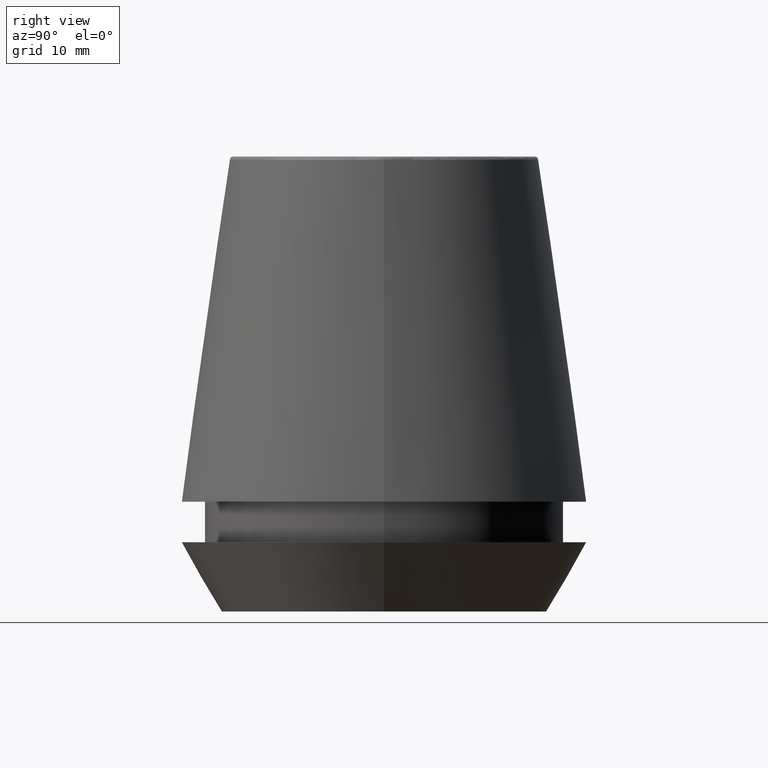
[diagram: clean part render]
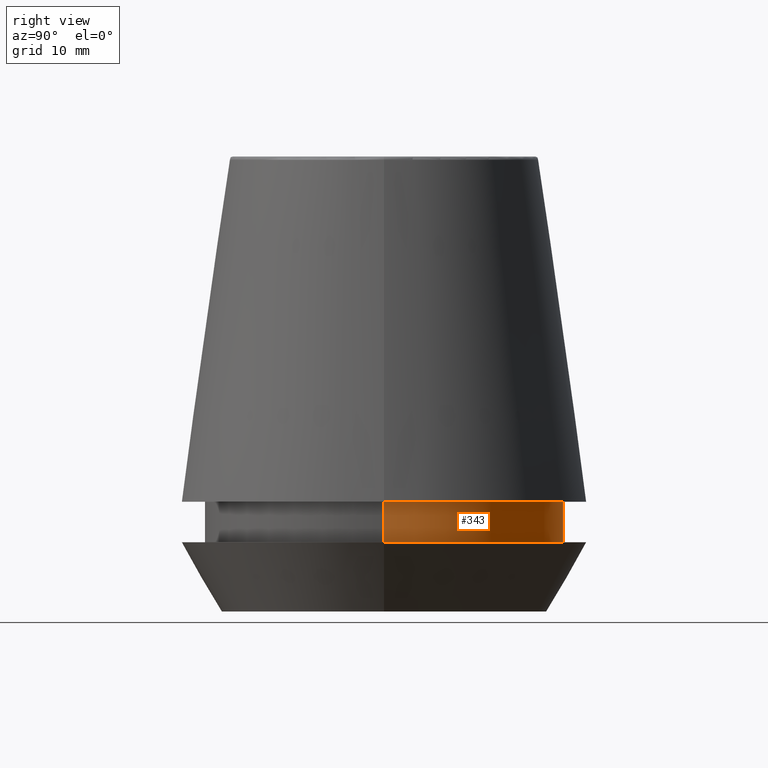
[diagram: same view with one face highlighted and labeled with its STEP entity id]
A machine part, right view. The second image highlights one B-rep face of the part: STEP entity #343.
In plain terms, the highlighted cylindrical surface (partial cylindrical patch) has radius 18.1 mm, axis along (-0, -0, 1).
Its self-contained STEP definition (entity closure, byte-faithful):
#36 = LINE ( 'NONE', #77, #141 ) ;
#39 = VECTOR ( 'NONE', #233, 1000.000000000000000 ) ;
#50 = CARTESIAN_POINT ( 'NONE',  ( 18.10000000000000100, 0.0000000000000000000, 6.999999999999999100 ) ) ;
#56 = CIRCLE ( 'NONE', #98, 18.10000000000000500 ) ;
#77 = CARTESIAN_POINT ( 'NONE',  ( 18.10000000000000500, 0.0000000000000000000, 46.00000000000000000 ) ) ;
#84 = CARTESIAN_POINT ( 'NONE',  ( -18.10000000000000500, 2.216610706456710000E-015, 11.09999999999999800 ) ) ;
#91 = AXIS2_PLACEMENT_3D ( 'NONE', #142, #110, #197 ) ;
#95 = ORIENTED_EDGE ( 'NONE', *, *, #159, .F. ) ;
#98 = AXIS2_PLACEMENT_3D ( 'NONE', #103, #138, #317 ) ;
#103 = CARTESIAN_POINT ( 'NONE',  ( 0.0000000000000000000, 0.0000000000000000000, 11.09999999999999800 ) ) ;
#110 = DIRECTION ( 'NONE',  ( -0.0000000000000000000, -0.0000000000000000000, 1.000000000000000000 ) ) ;
#117 = EDGE_LOOP ( 'NONE', ( #214, #270, #95, #173 ) ) ;
#127 = CIRCLE ( 'NONE', #272, 18.10000000000000100 ) ;
#138 = DIRECTION ( 'NONE',  ( -0.0000000000000000000, -0.0000000000000000000, 1.000000000000000000 ) ) ;
#140 = DIRECTION ( 'NONE',  ( -0.0000000000000000000, -0.0000000000000000000, 1.000000000000000000 ) ) ;
#141 = VECTOR ( 'NONE', #291, 1000.000000000000000 ) ;
#142 = CARTESIAN_POINT ( 'NONE',  ( 0.0000000000000000000, 0.0000000000000000000, 46.00000000000000000 ) ) ;
#153 = DIRECTION ( 'NONE',  ( 1.000000000000000000, 0.0000000000000000000, 0.0000000000000000000 ) ) ;
#159 = EDGE_CURVE ( 'NONE', #306, #290, #56, .T. ) ;
#172 = CARTESIAN_POINT ( 'NONE',  ( -18.10000000000000500, 2.216610706456710000E-015, 46.00000000000000000 ) ) ;
#173 = ORIENTED_EDGE ( 'NONE', *, *, #333, .F. ) ;
#182 = EDGE_CURVE ( 'NONE', #191, #255, #127, .T. ) ;
#191 = VERTEX_POINT ( 'NONE', #50 ) ;
#197 = DIRECTION ( 'NONE',  ( 1.000000000000000000, 0.0000000000000000000, 0.0000000000000000000 ) ) ;
#206 = CARTESIAN_POINT ( 'NONE',  ( 18.10000000000000500, 0.0000000000000000000, 11.09999999999999800 ) ) ;
#212 = FACE_OUTER_BOUND ( 'NONE', #117, .T. ) ;
#214 = ORIENTED_EDGE ( 'NONE', *, *, #182, .T. ) ;
#233 = DIRECTION ( 'NONE',  ( -0.0000000000000000000, -0.0000000000000000000, 1.000000000000000000 ) ) ;
#255 = VERTEX_POINT ( 'NONE', #331 ) ;
#268 = LINE ( 'NONE', #172, #39 ) ;
#270 = ORIENTED_EDGE ( 'NONE', *, *, #286, .T. ) ;
#272 = AXIS2_PLACEMENT_3D ( 'NONE', #321, #140, #153 ) ;
#285 = CYLINDRICAL_SURFACE ( 'NONE', #91, 18.10000000000000500 ) ;
#286 = EDGE_CURVE ( 'NONE', #255, #290, #268, .T. ) ;
#290 = VERTEX_POINT ( 'NONE', #84 ) ;
#291 = DIRECTION ( 'NONE',  ( -0.0000000000000000000, -0.0000000000000000000, 1.000000000000000000 ) ) ;
#306 = VERTEX_POINT ( 'NONE', #206 ) ;
#317 = DIRECTION ( 'NONE',  ( 1.000000000000000000, 0.0000000000000000000, 0.0000000000000000000 ) ) ;
#321 = CARTESIAN_POINT ( 'NONE',  ( 0.0000000000000000000, 0.0000000000000000000, 6.999999999999999100 ) ) ;
#331 = CARTESIAN_POINT ( 'NONE',  ( -18.10000000000000100, 2.216610706456709600E-015, 6.999999999999999100 ) ) ;
#333 = EDGE_CURVE ( 'NONE', #191, #306, #36, .T. ) ;
#343 = ADVANCED_FACE ( 'NONE', ( #212 ), #285, .T. ) ;